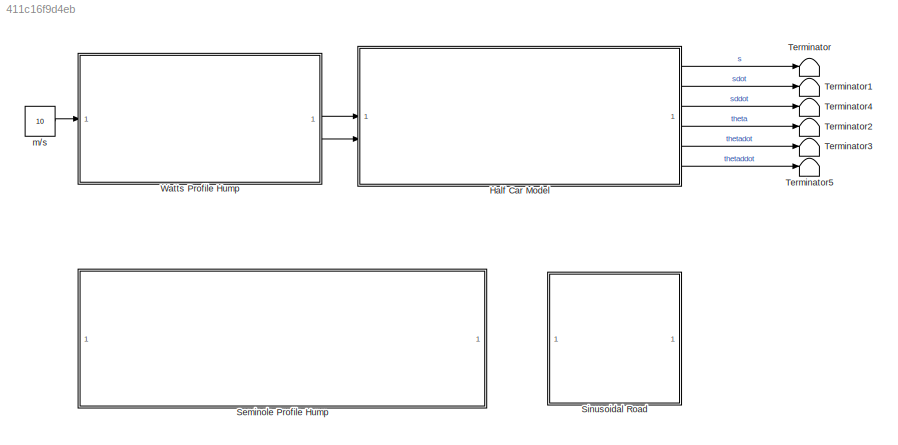
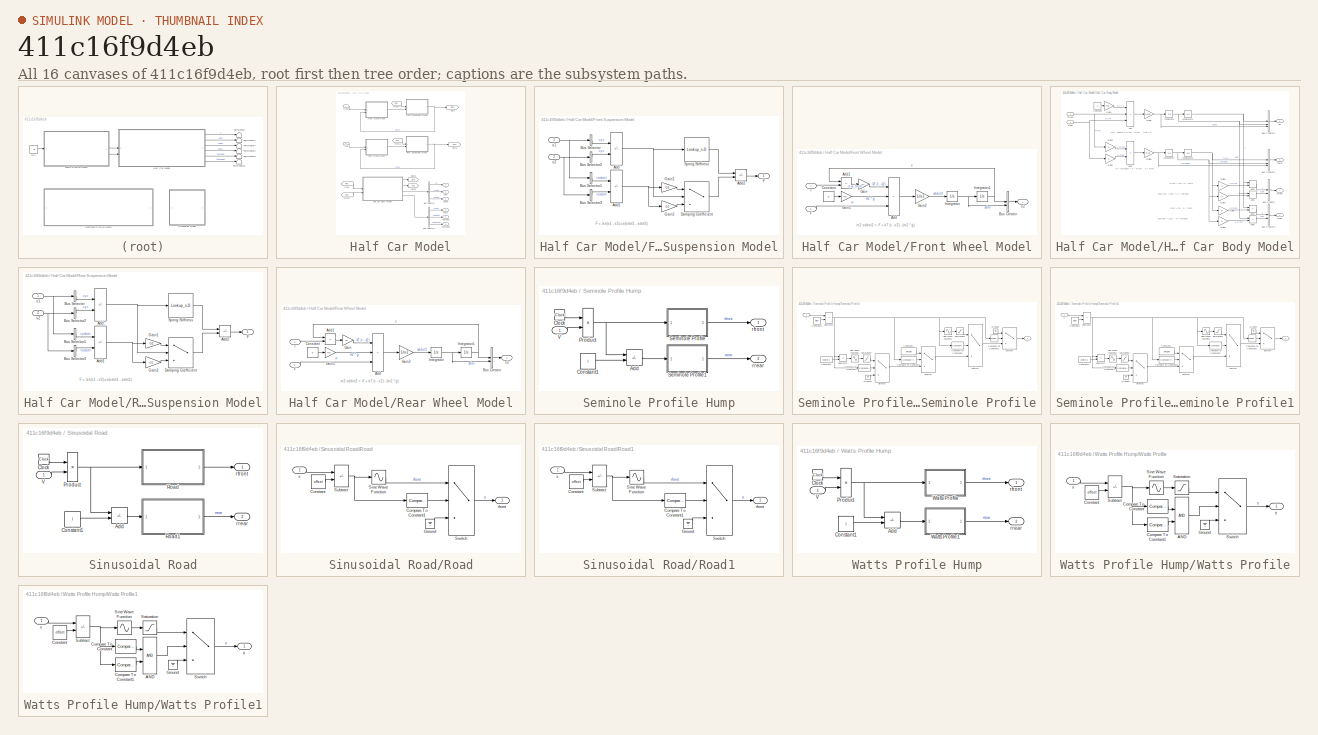
[diagram: thumbnail index - all 16 canvases of the model, root first then tree order]
MODEL slx_411c16f9d4eb
KIND model
CONFIG AbsTol = auto
CONFIG EnableMultiTasking = off
CONFIG FixedStep = auto
CONFIG MaxStep = auto
CONFIG MinStep = auto
CONFIG RelTol = 1e-3
CONFIG SampleTimeConstraint = Unconstrained
CONFIG SolverName = VariableStepAuto
CONFIG StartTime = 0.0
CONFIG StopTime = 30
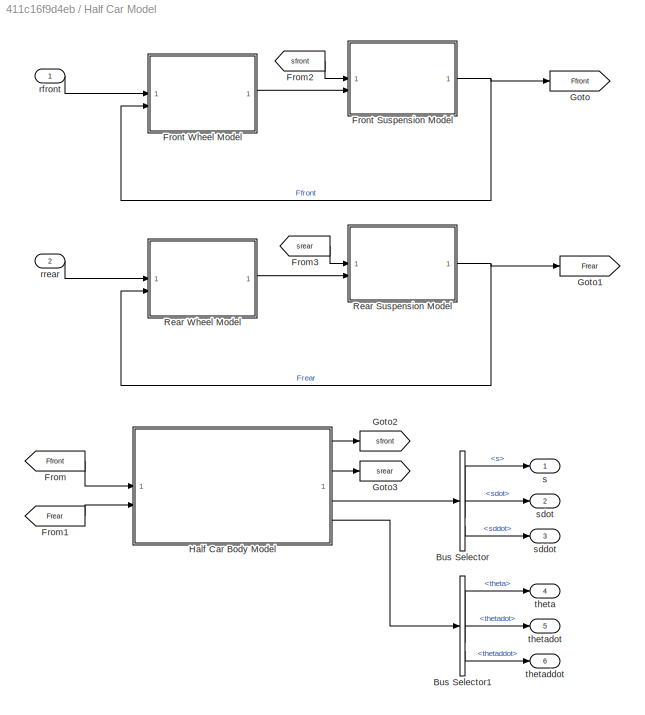
BLOCK [SubSystem] Half Car Model
BLOCK [BusSelector] Half Car Model/Bus Selector
  OutputSignals = s,sdot,sddot
BLOCK [BusSelector] Half Car Model/Bus Selector1
  OutputSignals = theta,thetadot,thetaddot
BLOCK [From] Half Car Model/From
  GotoTag = Ffront
BLOCK [From] Half Car Model/From1
  GotoTag = Frear
BLOCK [From] Half Car Model/From2
  GotoTag = sfront
BLOCK [From] Half Car Model/From3
  GotoTag = srear
BLOCK [SubSystem] Half Car Model/Front Suspension Model
  AttributesFormatString = ks = %<ks>\nk2 = %<k2>\nx0 = %<x0>\nce = %<ce>\ncc = %<cc>
BLOCK [Sum] Half Car Model/Front Suspension Model/Add
  IconShape = rectangular
  Inputs = +-
BLOCK [Sum] Half Car Model/Front Suspension Model/Add1
  IconShape = rectangular
  Inputs = +-
BLOCK [Sum] Half Car Model/Front Suspension Model/Add2
  IconShape = rectangular
  Inputs = --
BLOCK [BusSelector] Half Car Model/Front Suspension Model/Bus Selector
  OutputSignals = s
BLOCK [BusSelector] Half Car Model/Front Suspension Model/Bus Selector1
  OutputSignals = sdot
BLOCK [BusSelector] Half Car Model/Front Suspension Model/Bus Selector2
  OutputSignals = s
BLOCK [BusSelector] Half Car Model/Front Suspension Model/Bus Selector3
  OutputSignals = sdot
BLOCK [Switch] Half Car Model/Front Suspension Model/Damping Coefficient
  Criteria = u2 > Threshold
  InputSameDT = off
  SaturateOnIntegerOverflow = off
BLOCK [Outport] Half Car Model/Front Suspension Model/F
BLOCK [Gain] Half Car Model/Front Suspension Model/Gain1
  Gain = ce
BLOCK [Gain] Half Car Model/Front Suspension Model/Gain2
  Gain = cc
BLOCK [Lookup_n-D] Half Car Model/Front Suspension Model/Spring Stiffness
  BreakpointsForDimension1 = [-2*x0, -x0, x0, 2*x0]
  InputPortMap = u0
  InternalRulePriority = Speed
  NumberOfTableDimensions = 1
  RndMeth = Simplest
  Table = [-(ks+k2)*x0, -ks*x0, ks*x0, (ks+k2)*x0]
BLOCK [Inport] Half Car Model/Front Suspension Model/s1
BLOCK [Inport] Half Car Model/Front Suspension Model/s2
  Port = 2
BLOCK [SubSystem] Half Car Model/Front Wheel Model
  AttributesFormatString = g = %<g>\nkT = %<kT>\nm2 = %<m2>
BLOCK [Sum] Half Car Model/Front Wheel Model/Add
  IconShape = rectangular
  Inputs = +--
BLOCK [Sum] Half Car Model/Front Wheel Model/Add1
  IconShape = rectangular
  Inputs = -+
BLOCK [BusCreator] Half Car Model/Front Wheel Model/Bus Creator
  DisplayOption = bar
  InheritFromInputs = on
  Inputs = 2
BLOCK [Constant] Half Car Model/Front Wheel Model/Constant
  Value = g
BLOCK [Inport] Half Car Model/Front Wheel Model/F
  Port = 2
BLOCK [Gain] Half Car Model/Front Wheel Model/Gain
  Gain = kT
BLOCK [Gain] Half Car Model/Front Wheel Model/Gain1
  Gain = m2
BLOCK [Gain] Half Car Model/Front Wheel Model/Gain2
  Gain = 1/m2
BLOCK [Integrator] Half Car Model/Front Wheel Model/Integrator
BLOCK [Integrator] Half Car Model/Front Wheel Model/Integrator1
BLOCK [Inport] Half Car Model/Front Wheel Model/r
BLOCK [Outport] Half Car Model/Front Wheel Model/s2
BLOCK [Goto] Half Car Model/Goto
  GotoTag = Ffront
BLOCK [Goto] Half Car Model/Goto1
  GotoTag = Frear
BLOCK [Goto] Half Car Model/Goto2
  GotoTag = sfront
BLOCK [Goto] Half Car Model/Goto3
  GotoTag = srear
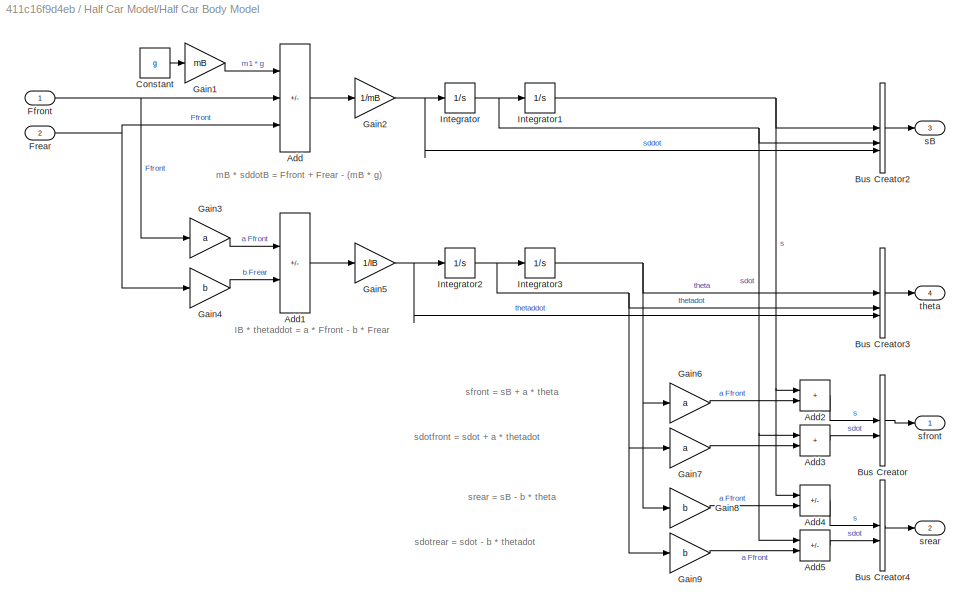
BLOCK [SubSystem] Half Car Model/Half Car Body Model
  AttributesFormatString = mB = %<mB>\nIB = %<IB>\ng = %<g>\na = %<a>\nb = %<b>
BLOCK [Sum] Half Car Model/Half Car Body Model/Add
  IconShape = rectangular
  Inputs = -++
BLOCK [Sum] Half Car Model/Half Car Body Model/Add1
  IconShape = rectangular
  Inputs = +-
BLOCK [Sum] Half Car Model/Half Car Body Model/Add2
  IconShape = rectangular
BLOCK [Sum] Half Car Model/Half Car Body Model/Add3
  IconShape = rectangular
BLOCK [Sum] Half Car Model/Half Car Body Model/Add4
  IconShape = rectangular
  Inputs = +-
BLOCK [Sum] Half Car Model/Half Car Body Model/Add5
  IconShape = rectangular
  Inputs = +-
BLOCK [BusCreator] Half Car Model/Half Car Body Model/Bus Creator
  DisplayOption = bar
  InheritFromInputs = on
  Inputs = 2
BLOCK [BusCreator] Half Car Model/Half Car Body Model/Bus Creator2
  DisplayOption = bar
  InheritFromInputs = on
  Inputs = 3
BLOCK [BusCreator] Half Car Model/Half Car Body Model/Bus Creator3
  DisplayOption = bar
  InheritFromInputs = on
  Inputs = 3
BLOCK [BusCreator] Half Car Model/Half Car Body Model/Bus Creator4
  DisplayOption = bar
  InheritFromInputs = on
  Inputs = 2
BLOCK [Constant] Half Car Model/Half Car Body Model/Constant
  Value = g
BLOCK [Inport] Half Car Model/Half Car Body Model/Ffront
BLOCK [Inport] Half Car Model/Half Car Body Model/Frear
  Port = 2
BLOCK [Gain] Half Car Model/Half Car Body Model/Gain1
  Gain = mB
BLOCK [Gain] Half Car Model/Half Car Body Model/Gain2
  Gain = 1/mB
BLOCK [Gain] Half Car Model/Half Car Body Model/Gain3
  Gain = a
BLOCK [Gain] Half Car Model/Half Car Body Model/Gain4
  Gain = b
BLOCK [Gain] Half Car Model/Half Car Body Model/Gain5
  Gain = 1/IB
BLOCK [Gain] Half Car Model/Half Car Body Model/Gain6
  Gain = a
BLOCK [Gain] Half Car Model/Half Car Body Model/Gain7
  Gain = a
BLOCK [Gain] Half Car Model/Half Car Body Model/Gain8
  Gain = b
BLOCK [Gain] Half Car Model/Half Car Body Model/Gain9
  Gain = b
BLOCK [Integrator] Half Car Model/Half Car Body Model/Integrator
BLOCK [Integrator] Half Car Model/Half Car Body Model/Integrator1
BLOCK [Integrator] Half Car Model/Half Car Body Model/Integrator2
BLOCK [Integrator] Half Car Model/Half Car Body Model/Integrator3
BLOCK [Outport] Half Car Model/Half Car Body Model/sB
  Port = 3
BLOCK [Outport] Half Car Model/Half Car Body Model/sfront
BLOCK [Outport] Half Car Model/Half Car Body Model/srear
  Port = 2
BLOCK [Outport] Half Car Model/Half Car Body Model/theta
  Port = 4
BLOCK [SubSystem] Half Car Model/Rear Suspension Model
  AttributesFormatString = ks = %<ks>\nk2 = %<k2>\nx0 = %<x0>\nce = %<ce>\ncc = %<cc>
BLOCK [Sum] Half Car Model/Rear Suspension Model/Add
  IconShape = rectangular
  Inputs = +-
BLOCK [Sum] Half Car Model/Rear Suspension Model/Add1
  IconShape = rectangular
  Inputs = +-
BLOCK [Sum] Half Car Model/Rear Suspension Model/Add2
  IconShape = rectangular
  Inputs = --
BLOCK [BusSelector] Half Car Model/Rear Suspension Model/Bus Selector
  OutputSignals = s
BLOCK [BusSelector] Half Car Model/Rear Suspension Model/Bus Selector1
  OutputSignals = sdot
BLOCK [BusSelector] Half Car Model/Rear Suspension Model/Bus Selector2
  OutputSignals = s
BLOCK [BusSelector] Half Car Model/Rear Suspension Model/Bus Selector3
  OutputSignals = sdot
BLOCK [Switch] Half Car Model/Rear Suspension Model/Damping Coefficient
  Criteria = u2 > Threshold
  InputSameDT = off
  SaturateOnIntegerOverflow = off
BLOCK [Outport] Half Car Model/Rear Suspension Model/F
BLOCK [Gain] Half Car Model/Rear Suspension Model/Gain1
  Gain = ce
BLOCK [Gain] Half Car Model/Rear Suspension Model/Gain2
  Gain = cc
BLOCK [Lookup_n-D] Half Car Model/Rear Suspension Model/Spring Stiffness
  BreakpointsForDimension1 = [-2*x0, -x0, x0, 2*x0]
  InputPortMap = u0
  InternalRulePriority = Speed
  NumberOfTableDimensions = 1
  RndMeth = Simplest
  Table = [-(ks+k2)*x0, -ks*x0, ks*x0, (ks+k2)*x0]
BLOCK [Inport] Half Car Model/Rear Suspension Model/s1
BLOCK [Inport] Half Car Model/Rear Suspension Model/s2
  Port = 2
BLOCK [SubSystem] Half Car Model/Rear Wheel Model
  AttributesFormatString = g = %<g>\nkT = %<kT>\nm2 = %<m2>
BLOCK [Sum] Half Car Model/Rear Wheel Model/Add
  IconShape = rectangular
  Inputs = +--
BLOCK [Sum] Half Car Model/Rear Wheel Model/Add1
  IconShape = rectangular
  Inputs = -+
BLOCK [BusCreator] Half Car Model/Rear Wheel Model/Bus Creator
  DisplayOption = bar
  InheritFromInputs = on
  Inputs = 2
BLOCK [Constant] Half Car Model/Rear Wheel Model/Constant
  Value = g
BLOCK [Inport] Half Car Model/Rear Wheel Model/F
  Port = 2
BLOCK [Gain] Half Car Model/Rear Wheel Model/Gain
  Gain = kT
BLOCK [Gain] Half Car Model/Rear Wheel Model/Gain1
  Gain = m2
BLOCK [Gain] Half Car Model/Rear Wheel Model/Gain2
  Gain = 1/m2
BLOCK [Integrator] Half Car Model/Rear Wheel Model/Integrator
BLOCK [Integrator] Half Car Model/Rear Wheel Model/Integrator1
BLOCK [Inport] Half Car Model/Rear Wheel Model/r
BLOCK [Outport] Half Car Model/Rear Wheel Model/s2
BLOCK [Inport] Half Car Model/rfront
BLOCK [Inport] Half Car Model/rrear
  Port = 2
BLOCK [Outport] Half Car Model/s
BLOCK [Outport] Half Car Model/sddot
  Port = 3
BLOCK [Outport] Half Car Model/sdot
  Port = 2
BLOCK [Outport] Half Car Model/theta
  Port = 4
BLOCK [Outport] Half Car Model/thetaddot
  Port = 6
BLOCK [Outport] Half Car Model/thetadot
  Port = 5
BLOCK [SubSystem] Seminole Profile Hump
  AttributesFormatString = l = %<l>\nwidth = %<width>\nheight = %<height>\noffset = %<offset>
  Commented = on
BLOCK [Sum] Seminole Profile Hump/Add
  IconShape = rectangular
  Inputs = +-
BLOCK [Clock] Seminole Profile Hump/Clock
BLOCK [Constant] Seminole Profile Hump/Constant1
  Value = l
BLOCK [Product] Seminole Profile Hump/Product
BLOCK [SubSystem] Seminole Profile Hump/Seminole Profile
BLOCK [Reference] Seminole Profile Hump/Seminole Profile/Compare To Constant1  REF=simulink/Logic and Bit
Operations/Compare
To Constant
  SourceBlock = simulink/Logic and Bit\nOperations/Compare\nTo Constant
  SourceType = Compare To Constant
BLOCK [Reference] Seminole Profile Hump/Seminole Profile/Compare To Constant3  REF=simulink/Logic and Bit
Operations/Compare
To Constant
  SourceBlock = simulink/Logic and Bit\nOperations/Compare\nTo Constant
  SourceType = Compare To Constant
BLOCK [Reference] Seminole Profile Hump/Seminole Profile/Compare To Constant4  REF=simulink/Logic and Bit
Operations/Compare
To Constant
  SourceBlock = simulink/Logic and Bit\nOperations/Compare\nTo Constant
  SourceType = Compare To Constant
BLOCK [Reference] Seminole Profile Hump/Seminole Profile/Compare To Constant5  REF=simulink/Logic and Bit
Operations/Compare
To Constant
  SourceBlock = simulink/Logic and Bit\nOperations/Compare\nTo Constant
  SourceType = Compare To Constant
BLOCK [Constant] Seminole Profile Hump/Seminole Profile/Constant1
  Value = height
BLOCK [Constant] Seminole Profile Hump/Seminole Profile/Constant2
  Value = width/3
BLOCK [Constant] Seminole Profile Hump/Seminole Profile/Constant3
  Value = offset
BLOCK [Ground] Seminole Profile Hump/Seminole Profile/Ground
BLOCK [Ground] Seminole Profile Hump/Seminole Profile/Ground1
BLOCK [Saturate] Seminole Profile Hump/Seminole Profile/Saturation1
  LowerLimit = 0
  UpperLimit = height
BLOCK [Saturate] Seminole Profile Hump/Seminole Profile/Saturation2
  LowerLimit = 0
  UpperLimit = height
BLOCK [Sin] Seminole Profile Hump/Seminole Profile/Sine Wave Function1
  Amplitude = height
  Frequency = (2*pi)/(width*4/3)
  SampleTime = 0
  TimeSource = Use external signal
BLOCK [Sin] Seminole Profile Hump/Seminole Profile/Sine Wave Function2
  Amplitude = height
  Frequency = (2*pi)/(width*4/3)
  SampleTime = 0
  TimeSource = Use external signal
BLOCK [Sum] Seminole Profile Hump/Seminole Profile/Subtract1
  IconShape = rectangular
  Inputs = +-
BLOCK [Sum] Seminole Profile Hump/Seminole Profile/Subtract2
  IconShape = rectangular
  Inputs = +-
BLOCK [Switch] Seminole Profile Hump/Seminole Profile/Switch1
  Criteria = u2 > Threshold
  InputSameDT = off
  SaturateOnIntegerOverflow = off
BLOCK [Switch] Seminole Profile Hump/Seminole Profile/Switch2
  Criteria = u2 > Threshold
  InputSameDT = off
  SaturateOnIntegerOverflow = off
BLOCK [Switch] Seminole Profile Hump/Seminole Profile/Switch3
  Criteria = u2 > Threshold
  InputSameDT = off
  SaturateOnIntegerOverflow = off
BLOCK [Switch] Seminole Profile Hump/Seminole Profile/Switch4
  Criteria = u2 > Threshold
  InputSameDT = off
  SaturateOnIntegerOverflow = off
BLOCK [Inport] Seminole Profile Hump/Seminole Profile/x
BLOCK [Outport] Seminole Profile Hump/Seminole Profile/y
BLOCK [SubSystem] Seminole Profile Hump/Seminole Profile1
BLOCK [Reference] Seminole Profile Hump/Seminole Profile1/Compare To Constant1  REF=simulink/Logic and Bit
Operations/Compare
To Constant
  SourceBlock = simulink/Logic and Bit\nOperations/Compare\nTo Constant
  SourceType = Compare To Constant
BLOCK [Reference] Seminole Profile Hump/Seminole Profile1/Compare To Constant3  REF=simulink/Logic and Bit
Operations/Compare
To Constant
  SourceBlock = simulink/Logic and Bit\nOperations/Compare\nTo Constant
  SourceType = Compare To Constant
BLOCK [Reference] Seminole Profile Hump/Seminole Profile1/Compare To Constant4  REF=simulink/Logic and Bit
Operations/Compare
To Constant
  SourceBlock = simulink/Logic and Bit\nOperations/Compare\nTo Constant
  SourceType = Compare To Constant
BLOCK [Reference] Seminole Profile Hump/Seminole Profile1/Compare To Constant5  REF=simulink/Logic and Bit
Operations/Compare
To Constant
  SourceBlock = simulink/Logic and Bit\nOperations/Compare\nTo Constant
  SourceType = Compare To Constant
BLOCK [Constant] Seminole Profile Hump/Seminole Profile1/Constant1
  Value = height
BLOCK [Constant] Seminole Profile Hump/Seminole Profile1/Constant2
  Value = width/3
BLOCK [Constant] Seminole Profile Hump/Seminole Profile1/Constant3
  Value = offset
BLOCK [Ground] Seminole Profile Hump/Seminole Profile1/Ground
BLOCK [Ground] Seminole Profile Hump/Seminole Profile1/Ground1
BLOCK [Saturate] Seminole Profile Hump/Seminole Profile1/Saturation1
  LowerLimit = 0
  UpperLimit = height
BLOCK [Saturate] Seminole Profile Hump/Seminole Profile1/Saturation2
  LowerLimit = 0
  UpperLimit = height
BLOCK [Sin] Seminole Profile Hump/Seminole Profile1/Sine Wave Function1
  Amplitude = height
  Frequency = (2*pi)/(width*4/3)
  SampleTime = 0
  TimeSource = Use external signal
BLOCK [Sin] Seminole Profile Hump/Seminole Profile1/Sine Wave Function2
  Amplitude = height
  Frequency = (2*pi)/(width*4/3)
  SampleTime = 0
  TimeSource = Use external signal
BLOCK [Sum] Seminole Profile Hump/Seminole Profile1/Subtract1
  IconShape = rectangular
  Inputs = +-
BLOCK [Sum] Seminole Profile Hump/Seminole Profile1/Subtract2
  IconShape = rectangular
  Inputs = +-
BLOCK [Switch] Seminole Profile Hump/Seminole Profile1/Switch1
  Criteria = u2 > Threshold
  InputSameDT = off
  SaturateOnIntegerOverflow = off
BLOCK [Switch] Seminole Profile Hump/Seminole Profile1/Switch2
  Criteria = u2 > Threshold
  InputSameDT = off
  SaturateOnIntegerOverflow = off
BLOCK [Switch] Seminole Profile Hump/Seminole Profile1/Switch3
  Criteria = u2 > Threshold
  InputSameDT = off
  SaturateOnIntegerOverflow = off
BLOCK [Switch] Seminole Profile Hump/Seminole Profile1/Switch4
  Criteria = u2 > Threshold
  InputSameDT = off
  SaturateOnIntegerOverflow = off
BLOCK [Inport] Seminole Profile Hump/Seminole Profile1/x
BLOCK [Outport] Seminole Profile Hump/Seminole Profile1/y
BLOCK [Inport] Seminole Profile Hump/V
BLOCK [Outport] Seminole Profile Hump/rfront
BLOCK [Outport] Seminole Profile Hump/rrear
  Port = 2
BLOCK [SubSystem] Sinusoidal Road
  AttributesFormatString = l = %<l>\noffset = %<offset>
  Commented = on
BLOCK [Sum] Sinusoidal Road/Add
  IconShape = rectangular
  Inputs = +-
BLOCK [Clock] Sinusoidal Road/Clock
BLOCK [Constant] Sinusoidal Road/Constant1
  Value = l
BLOCK [Product] Sinusoidal Road/Product
BLOCK [SubSystem] Sinusoidal Road/Road
BLOCK [Reference] Sinusoidal Road/Road/Compare To Constant1  REF=simulink/Logic and Bit
Operations/Compare
To Constant
  SourceBlock = simulink/Logic and Bit\nOperations/Compare\nTo Constant
  SourceType = Compare To Constant
BLOCK [Constant] Sinusoidal Road/Road/Constant
  Value = offset
BLOCK [Ground] Sinusoidal Road/Road/Ground
BLOCK [Sin] Sinusoidal Road/Road/Sine Wave Function
  Amplitude = 0.01
  AttributesFormatString = Amplitude = %<Amplitude>\nFrequency = %<Frequency>
  Frequency = 2*pi
  SampleTime = 0
  TimeSource = Use external signal
BLOCK [Sum] Sinusoidal Road/Road/Subtract
  IconShape = rectangular
  Inputs = +-
BLOCK [Switch] Sinusoidal Road/Road/Switch
  Criteria = u2 > Threshold
  InputSameDT = off
  SaturateOnIntegerOverflow = off
BLOCK [Outport] Sinusoidal Road/Road/rfront
BLOCK [Inport] Sinusoidal Road/Road/x
BLOCK [SubSystem] Sinusoidal Road/Road1
BLOCK [Reference] Sinusoidal Road/Road1/Compare To Constant1  REF=simulink/Logic and Bit
Operations/Compare
To Constant
  SourceBlock = simulink/Logic and Bit\nOperations/Compare\nTo Constant
  SourceType = Compare To Constant
BLOCK [Constant] Sinusoidal Road/Road1/Constant
  Value = offset
BLOCK [Ground] Sinusoidal Road/Road1/Ground
BLOCK [Sin] Sinusoidal Road/Road1/Sine Wave Function
  Amplitude = 0.01
  AttributesFormatString = Amplitude = %<Amplitude>\nFrequency = %<Frequency>
  Frequency = 2*pi
  SampleTime = 0
  TimeSource = Use external signal
BLOCK [Sum] Sinusoidal Road/Road1/Subtract
  IconShape = rectangular
  Inputs = +-
BLOCK [Switch] Sinusoidal Road/Road1/Switch
  Criteria = u2 > Threshold
  InputSameDT = off
  SaturateOnIntegerOverflow = off
BLOCK [Outport] Sinusoidal Road/Road1/rfront
BLOCK [Inport] Sinusoidal Road/Road1/x
BLOCK [Inport] Sinusoidal Road/V
BLOCK [Outport] Sinusoidal Road/rfront
BLOCK [Outport] Sinusoidal Road/rrear
  Port = 2
BLOCK [Terminator] Terminator
BLOCK [Terminator] Terminator1
BLOCK [Terminator] Terminator2
BLOCK [Terminator] Terminator3
BLOCK [Terminator] Terminator4
BLOCK [Terminator] Terminator5
BLOCK [SubSystem] Watts Profile Hump
  AttributesFormatString = l = %<l>\nwidth = %<width>\nheight = %<height>\noffset = %<offset>
BLOCK [Sum] Watts Profile Hump/Add
  IconShape = rectangular
  Inputs = +-
BLOCK [Clock] Watts Profile Hump/Clock
BLOCK [Constant] Watts Profile Hump/Constant1
  Value = l
BLOCK [Product] Watts Profile Hump/Product
BLOCK [Inport] Watts Profile Hump/V
BLOCK [SubSystem] Watts Profile Hump/Watts Profile
BLOCK [Logic] Watts Profile Hump/Watts Profile/AND
  AllPortsSameDT = off
  OutDataTypeStr = boolean
BLOCK [Reference] Watts Profile Hump/Watts Profile/Compare To Constant  REF=simulink/Logic and Bit
Operations/Compare
To Constant
  SourceBlock = simulink/Logic and Bit\nOperations/Compare\nTo Constant
  SourceType = Compare To Constant
BLOCK [Reference] Watts Profile Hump/Watts Profile/Compare To Constant1  REF=simulink/Logic and Bit
Operations/Compare
To Constant
  SourceBlock = simulink/Logic and Bit\nOperations/Compare\nTo Constant
  SourceType = Compare To Constant
BLOCK [Constant] Watts Profile Hump/Watts Profile/Constant
  Value = offset
BLOCK [Ground] Watts Profile Hump/Watts Profile/Ground
BLOCK [Saturate] Watts Profile Hump/Watts Profile/Saturation
  LowerLimit = 0
  UpperLimit = height
BLOCK [Sin] Watts Profile Hump/Watts Profile/Sine Wave Function
  Amplitude = height
  Frequency = (2*pi)/(width*2)
  SampleTime = 0
  TimeSource = Use external signal
BLOCK [Sum] Watts Profile Hump/Watts Profile/Subtract
  IconShape = rectangular
  Inputs = +-
BLOCK [Switch] Watts Profile Hump/Watts Profile/Switch
  Criteria = u2 > Threshold
  InputSameDT = off
  SaturateOnIntegerOverflow = off
BLOCK [Inport] Watts Profile Hump/Watts Profile/x
BLOCK [Outport] Watts Profile Hump/Watts Profile/y
BLOCK [SubSystem] Watts Profile Hump/Watts Profile1
BLOCK [Logic] Watts Profile Hump/Watts Profile1/AND
  AllPortsSameDT = off
  OutDataTypeStr = boolean
BLOCK [Reference] Watts Profile Hump/Watts Profile1/Compare To Constant  REF=simulink/Logic and Bit
Operations/Compare
To Constant
  SourceBlock = simulink/Logic and Bit\nOperations/Compare\nTo Constant
  SourceType = Compare To Constant
BLOCK [Reference] Watts Profile Hump/Watts Profile1/Compare To Constant1  REF=simulink/Logic and Bit
Operations/Compare
To Constant
  SourceBlock = simulink/Logic and Bit\nOperations/Compare\nTo Constant
  SourceType = Compare To Constant
BLOCK [Constant] Watts Profile Hump/Watts Profile1/Constant
  Value = offset
BLOCK [Ground] Watts Profile Hump/Watts Profile1/Ground
BLOCK [Saturate] Watts Profile Hump/Watts Profile1/Saturation
  LowerLimit = 0
  UpperLimit = height
BLOCK [Sin] Watts Profile Hump/Watts Profile1/Sine Wave Function
  Amplitude = height
  Frequency = (2*pi)/(width*2)
  SampleTime = 0
  TimeSource = Use external signal
BLOCK [Sum] Watts Profile Hump/Watts Profile1/Subtract
  IconShape = rectangular
  Inputs = +-
BLOCK [Switch] Watts Profile Hump/Watts Profile1/Switch
  Criteria = u2 > Threshold
  InputSameDT = off
  SaturateOnIntegerOverflow = off
BLOCK [Inport] Watts Profile Hump/Watts Profile1/x
BLOCK [Outport] Watts Profile Hump/Watts Profile1/y
BLOCK [Outport] Watts Profile Hump/rfront
BLOCK [Outport] Watts Profile Hump/rrear
  Port = 2
BLOCK [Constant] m//s
  Value = 10
ANNOTATION Half Car Model/Front Suspension Model: F = -ks(s1 - s2)-cs(sdot1 - sdot2)
ANNOTATION Half Car Model/Front Wheel Model: m2 sddot2 = -F + kT (r - s2) - (m2 * g)
ANNOTATION Half Car Model/Half Car Body Model: IB * thetaddot = a * Ffront - b * Frear
ANNOTATION Half Car Model/Half Car Body Model: mB * sddotB = Ffront + Frear - (mB * g)
ANNOTATION Half Car Model/Half Car Body Model: sdotfront = sdot + a * thetadot
ANNOTATION Half Car Model/Half Car Body Model: sdotrear = sdot - b * thetadot
ANNOTATION Half Car Model/Half Car Body Model: sfront = sB + a * theta
ANNOTATION Half Car Model/Half Car Body Model: srear = sB - b * theta
ANNOTATION Half Car Model/Rear Suspension Model: F = -ks(s1 - s2)-cs(sdot1 - sdot2)
ANNOTATION Half Car Model/Rear Wheel Model: m2 sddot2 = -F + kT (r - s2) - (m2 * g)
LINE Half Car Model/Bus Selector1:1 -> Half Car Model/theta:1
LINE Half Car Model/Bus Selector1:2 -> Half Car Model/thetadot:1
LINE Half Car Model/Bus Selector1:3 -> Half Car Model/thetaddot:1
LINE Half Car Model/Bus Selector:1 -> Half Car Model/s:1
LINE Half Car Model/Bus Selector:2 -> Half Car Model/sdot:1
LINE Half Car Model/Bus Selector:3 -> Half Car Model/sddot:1
LINE Half Car Model/From1:1 -> Half Car Model/Half Car Body Model:2
LINE Half Car Model/From2:1 -> Half Car Model/Front Suspension Model:1
LINE Half Car Model/From3:1 -> Half Car Model/Rear Suspension Model:1
LINE Half Car Model/From:1 -> Half Car Model/Half Car Body Model:1
NET Half Car Model/Front Suspension Model/Add1:1 -> Half Car Model/Front Suspension Model/Gain1:1, Half Car Model/Front Suspension Model/Gain2:1
LINE Half Car Model/Front Suspension Model/Add2:1 -> Half Car Model/Front Suspension Model/F:1
NET Half Car Model/Front Suspension Model/Add:1 -> Half Car Model/Front Suspension Model/Damping Coefficient:2, Half Car Model/Front Suspension Model/Spring Stiffness:1
LINE Half Car Model/Front Suspension Model/Bus Selector1:1 -> Half Car Model/Front Suspension Model/Add1:1
LINE Half Car Model/Front Suspension Model/Bus Selector2:1 -> Half Car Model/Front Suspension Model/Add:2
LINE Half Car Model/Front Suspension Model/Bus Selector3:1 -> Half Car Model/Front Suspension Model/Add1:2
LINE Half Car Model/Front Suspension Model/Bus Selector:1 -> Half Car Model/Front Suspension Model/Add:1
LINE Half Car Model/Front Suspension Model/Damping Coefficient:1 -> Half Car Model/Front Suspension Model/Add2:2
LINE Half Car Model/Front Suspension Model/Gain1:1 -> Half Car Model/Front Suspension Model/Damping Coefficient:1
LINE Half Car Model/Front Suspension Model/Gain2:1 -> Half Car Model/Front Suspension Model/Damping Coefficient:3
LINE Half Car Model/Front Suspension Model/Spring Stiffness:1 -> Half Car Model/Front Suspension Model/Add2:1
NET Half Car Model/Front Suspension Model/s1:1 -> Half Car Model/Front Suspension Model/Bus Selector1:1, Half Car Model/Front Suspension Model/Bus Selector:1
NET Half Car Model/Front Suspension Model/s2:1 -> Half Car Model/Front Suspension Model/Bus Selector2:1, Half Car Model/Front Suspension Model/Bus Selector3:1
NET Half Car Model/Front Suspension Model:1 -> Half Car Model/Front Wheel Model:2, Half Car Model/Goto:1
LINE Half Car Model/Front Wheel Model/Add1:1 -> Half Car Model/Front Wheel Model/Gain:1
LINE Half Car Model/Front Wheel Model/Add:1 -> Half Car Model/Front Wheel Model/Gain2:1
LINE Half Car Model/Front Wheel Model/Bus Creator:1 -> Half Car Model/Front Wheel Model/s2:1
LINE Half Car Model/Front Wheel Model/Constant:1 -> Half Car Model/Front Wheel Model/Gain1:1
LINE Half Car Model/Front Wheel Model/F:1 -> Half Car Model/Front Wheel Model/Add:3
LINE Half Car Model/Front Wheel Model/Gain1:1 -> Half Car Model/Front Wheel Model/Add:2
LINE Half Car Model/Front Wheel Model/Gain2:1 -> Half Car Model/Front Wheel Model/Integrator:1
LINE Half Car Model/Front Wheel Model/Gain:1 -> Half Car Model/Front Wheel Model/Add:1
NET Half Car Model/Front Wheel Model/Integrator1:1 -> Half Car Model/Front Wheel Model/Add1:1, Half Car Model/Front Wheel Model/Bus Creator:1
NET Half Car Model/Front Wheel Model/Integrator:1 -> Half Car Model/Front Wheel Model/Bus Creator:2, Half Car Model/Front Wheel Model/Integrator1:1
LINE Half Car Model/Front Wheel Model/r:1 -> Half Car Model/Front Wheel Model/Add1:2
LINE Half Car Model/Front Wheel Model:1 -> Half Car Model/Front Suspension Model:2
LINE Half Car Model/Half Car Body Model/Add1:1 -> Half Car Model/Half Car Body Model/Gain5:1
LINE Half Car Model/Half Car Body Model/Add2:1 -> Half Car Model/Half Car Body Model/Bus Creator:1
LINE Half Car Model/Half Car Body Model/Add3:1 -> Half Car Model/Half Car Body Model/Bus Creator:2
LINE Half Car Model/Half Car Body Model/Add4:1 -> Half Car Model/Half Car Body Model/Bus Creator4:1
LINE Half Car Model/Half Car Body Model/Add5:1 -> Half Car Model/Half Car Body Model/Bus Creator4:2
LINE Half Car Model/Half Car Body Model/Add:1 -> Half Car Model/Half Car Body Model/Gain2:1
LINE Half Car Model/Half Car Body Model/Bus Creator2:1 -> Half Car Model/Half Car Body Model/sB:1
LINE Half Car Model/Half Car Body Model/Bus Creator3:1 -> Half Car Model/Half Car Body Model/theta:1
LINE Half Car Model/Half Car Body Model/Bus Creator4:1 -> Half Car Model/Half Car Body Model/srear:1
LINE Half Car Model/Half Car Body Model/Bus Creator:1 -> Half Car Model/Half Car Body Model/sfront:1
LINE Half Car Model/Half Car Body Model/Constant:1 -> Half Car Model/Half Car Body Model/Gain1:1
NET Half Car Model/Half Car Body Model/Ffront:1 -> Half Car Model/Half Car Body Model/Add:2, Half Car Model/Half Car Body Model/Gain3:1
NET Half Car Model/Half Car Body Model/Frear:1 -> Half Car Model/Half Car Body Model/Add:3, Half Car Model/Half Car Body Model/Gain4:1
LINE Half Car Model/Half Car Body Model/Gain1:1 -> Half Car Model/Half Car Body Model/Add:1
NET Half Car Model/Half Car Body Model/Gain2:1 -> Half Car Model/Half Car Body Model/Bus Creator2:3, Half Car Model/Half Car Body Model/Integrator:1
LINE Half Car Model/Half Car Body Model/Gain3:1 -> Half Car Model/Half Car Body Model/Add1:1
LINE Half Car Model/Half Car Body Model/Gain4:1 -> Half Car Model/Half Car Body Model/Add1:2
NET Half Car Model/Half Car Body Model/Gain5:1 -> Half Car Model/Half Car Body Model/Bus Creator3:3, Half Car Model/Half Car Body Model/Integrator2:1
LINE Half Car Model/Half Car Body Model/Gain6:1 -> Half Car Model/Half Car Body Model/Add2:2
LINE Half Car Model/Half Car Body Model/Gain7:1 -> Half Car Model/Half Car Body Model/Add3:2
LINE Half Car Model/Half Car Body Model/Gain8:1 -> Half Car Model/Half Car Body Model/Add4:2
LINE Half Car Model/Half Car Body Model/Gain9:1 -> Half Car Model/Half Car Body Model/Add5:2
NET Half Car Model/Half Car Body Model/Integrator1:1 -> Half Car Model/Half Car Body Model/Add2:1, Half Car Model/Half Car Body Model/Add4:1, Half Car Model/Half Car Body Model/Bus Creator2:1
NET Half Car Model/Half Car Body Model/Integrator2:1 -> Half Car Model/Half Car Body Model/Bus Creator3:2, Half Car Model/Half Car Body Model/Gain7:1, Half Car Model/Half Car Body Model/Gain9:1, Half Car Model/Half Car Body Model/Integrator3:1
NET Half Car Model/Half Car Body Model/Integrator3:1 -> Half Car Model/Half Car Body Model/Bus Creator3:1, Half Car Model/Half Car Body Model/Gain6:1, Half Car Model/Half Car Body Model/Gain8:1
NET Half Car Model/Half Car Body Model/Integrator:1 -> Half Car Model/Half Car Body Model/Add3:1, Half Car Model/Half Car Body Model/Add5:1, Half Car Model/Half Car Body Model/Bus Creator2:2, Half Car Model/Half Car Body Model/Integrator1:1
LINE Half Car Model/Half Car Body Model:1 -> Half Car Model/Goto2:1
LINE Half Car Model/Half Car Body Model:2 -> Half Car Model/Goto3:1
LINE Half Car Model/Half Car Body Model:3 -> Half Car Model/Bus Selector:1
LINE Half Car Model/Half Car Body Model:4 -> Half Car Model/Bus Selector1:1
NET Half Car Model/Rear Suspension Model/Add1:1 -> Half Car Model/Rear Suspension Model/Gain1:1, Half Car Model/Rear Suspension Model/Gain2:1
LINE Half Car Model/Rear Suspension Model/Add2:1 -> Half Car Model/Rear Suspension Model/F:1
NET Half Car Model/Rear Suspension Model/Add:1 -> Half Car Model/Rear Suspension Model/Damping Coefficient:2, Half Car Model/Rear Suspension Model/Spring Stiffness:1
LINE Half Car Model/Rear Suspension Model/Bus Selector1:1 -> Half Car Model/Rear Suspension Model/Add1:1
LINE Half Car Model/Rear Suspension Model/Bus Selector2:1 -> Half Car Model/Rear Suspension Model/Add:2
LINE Half Car Model/Rear Suspension Model/Bus Selector3:1 -> Half Car Model/Rear Suspension Model/Add1:2
LINE Half Car Model/Rear Suspension Model/Bus Selector:1 -> Half Car Model/Rear Suspension Model/Add:1
LINE Half Car Model/Rear Suspension Model/Damping Coefficient:1 -> Half Car Model/Rear Suspension Model/Add2:2
LINE Half Car Model/Rear Suspension Model/Gain1:1 -> Half Car Model/Rear Suspension Model/Damping Coefficient:1
LINE Half Car Model/Rear Suspension Model/Gain2:1 -> Half Car Model/Rear Suspension Model/Damping Coefficient:3
LINE Half Car Model/Rear Suspension Model/Spring Stiffness:1 -> Half Car Model/Rear Suspension Model/Add2:1
NET Half Car Model/Rear Suspension Model/s1:1 -> Half Car Model/Rear Suspension Model/Bus Selector1:1, Half Car Model/Rear Suspension Model/Bus Selector:1
NET Half Car Model/Rear Suspension Model/s2:1 -> Half Car Model/Rear Suspension Model/Bus Selector2:1, Half Car Model/Rear Suspension Model/Bus Selector3:1
NET Half Car Model/Rear Suspension Model:1 -> Half Car Model/Goto1:1, Half Car Model/Rear Wheel Model:2
LINE Half Car Model/Rear Wheel Model/Add1:1 -> Half Car Model/Rear Wheel Model/Gain:1
LINE Half Car Model/Rear Wheel Model/Add:1 -> Half Car Model/Rear Wheel Model/Gain2:1
LINE Half Car Model/Rear Wheel Model/Bus Creator:1 -> Half Car Model/Rear Wheel Model/s2:1
LINE Half Car Model/Rear Wheel Model/Constant:1 -> Half Car Model/Rear Wheel Model/Gain1:1
LINE Half Car Model/Rear Wheel Model/F:1 -> Half Car Model/Rear Wheel Model/Add:3
LINE Half Car Model/Rear Wheel Model/Gain1:1 -> Half Car Model/Rear Wheel Model/Add:2
LINE Half Car Model/Rear Wheel Model/Gain2:1 -> Half Car Model/Rear Wheel Model/Integrator:1
LINE Half Car Model/Rear Wheel Model/Gain:1 -> Half Car Model/Rear Wheel Model/Add:1
NET Half Car Model/Rear Wheel Model/Integrator1:1 -> Half Car Model/Rear Wheel Model/Add1:1, Half Car Model/Rear Wheel Model/Bus Creator:1
NET Half Car Model/Rear Wheel Model/Integrator:1 -> Half Car Model/Rear Wheel Model/Bus Creator:2, Half Car Model/Rear Wheel Model/Integrator1:1
LINE Half Car Model/Rear Wheel Model/r:1 -> Half Car Model/Rear Wheel Model/Add1:2
LINE Half Car Model/Rear Wheel Model:1 -> Half Car Model/Rear Suspension Model:2
LINE Half Car Model/rfront:1 -> Half Car Model/Front Wheel Model:1
LINE Half Car Model/rrear:1 -> Half Car Model/Rear Wheel Model:1
LINE Half Car Model:1 -> Terminator:1
LINE Half Car Model:2 -> Terminator1:1
LINE Half Car Model:3 -> Terminator4:1
LINE Half Car Model:4 -> Terminator2:1
LINE Half Car Model:5 -> Terminator3:1
LINE Half Car Model:6 -> Terminator5:1
LINE Seminole Profile Hump/Add:1 -> Seminole Profile Hump/Seminole Profile1:1
LINE Seminole Profile Hump/Clock:1 -> Seminole Profile Hump/Product:1
LINE Seminole Profile Hump/Constant1:1 -> Seminole Profile Hump/Add:2
NET Seminole Profile Hump/Product:1 -> Seminole Profile Hump/Add:1, Seminole Profile Hump/Seminole Profile:1
LINE Seminole Profile Hump/Seminole Profile/Compare To Constant1:1 -> Seminole Profile Hump/Seminole Profile/Switch4:2
LINE Seminole Profile Hump/Seminole Profile/Compare To Constant3:1 -> Seminole Profile Hump/Seminole Profile/Switch2:2
LINE Seminole Profile Hump/Seminole Profile/Compare To Constant4:1 -> Seminole Profile Hump/Seminole Profile/Switch3:2
LINE Seminole Profile Hump/Seminole Profile/Compare To Constant5:1 -> Seminole Profile Hump/Seminole Profile/Switch1:2
LINE Seminole Profile Hump/Seminole Profile/Constant1:1 -> Seminole Profile Hump/Seminole Profile/Switch2:1
LINE Seminole Profile Hump/Seminole Profile/Constant2:1 -> Seminole Profile Hump/Seminole Profile/Subtract1:2
LINE Seminole Profile Hump/Seminole Profile/Constant3:1 -> Seminole Profile Hump/Seminole Profile/Subtract2:2
LINE Seminole Profile Hump/Seminole Profile/Ground1:1 -> Seminole Profile Hump/Seminole Profile/Switch3:3
LINE Seminole Profile Hump/Seminole Profile/Ground:1 -> Seminole Profile Hump/Seminole Profile/Switch4:1
LINE Seminole Profile Hump/Seminole Profile/Saturation1:1 -> Seminole Profile Hump/Seminole Profile/Switch1:1
LINE Seminole Profile Hump/Seminole Profile/Saturation2:1 -> Seminole Profile Hump/Seminole Profile/Switch3:1
LINE Seminole Profile Hump/Seminole Profile/Sine Wave Function1:1 -> Seminole Profile Hump/Seminole Profile/Saturation1:1
LINE Seminole Profile Hump/Seminole Profile/Sine Wave Function2:1 -> Seminole Profile Hump/Seminole Profile/Saturation2:1
LINE Seminole Profile Hump/Seminole Profile/Subtract1:1 -> Seminole Profile Hump/Seminole Profile/Sine Wave Function2:1
NET Seminole Profile Hump/Seminole Profile/Subtract2:1 -> Seminole Profile Hump/Seminole Profile/Compare To Constant1:1, Seminole Profile Hump/Seminole Profile/Compare To Constant3:1, Seminole Profile Hump/Seminole Profile/Compare To Constant4:1, Seminole Profile Hump/Seminole Profile/Compare To Constant5:1, Seminole Profile Hump/Seminole Profile/Sine Wave Function1:1, Seminole Profile Hump/Seminole Profile/Subtract1:1
LINE Seminole Profile Hump/Seminole Profile/Switch1:1 -> Seminole Profile Hump/Seminole Profile/Switch4:3
LINE Seminole Profile Hump/Seminole Profile/Switch2:1 -> Seminole Profile Hump/Seminole Profile/Switch1:3
LINE Seminole Profile Hump/Seminole Profile/Switch3:1 -> Seminole Profile Hump/Seminole Profile/Switch2:3
LINE Seminole Profile Hump/Seminole Profile/Switch4:1 -> Seminole Profile Hump/Seminole Profile/y:1
LINE Seminole Profile Hump/Seminole Profile/x:1 -> Seminole Profile Hump/Seminole Profile/Subtract2:1
LINE Seminole Profile Hump/Seminole Profile1/Compare To Constant1:1 -> Seminole Profile Hump/Seminole Profile1/Switch4:2
LINE Seminole Profile Hump/Seminole Profile1/Compare To Constant3:1 -> Seminole Profile Hump/Seminole Profile1/Switch2:2
LINE Seminole Profile Hump/Seminole Profile1/Compare To Constant4:1 -> Seminole Profile Hump/Seminole Profile1/Switch3:2
LINE Seminole Profile Hump/Seminole Profile1/Compare To Constant5:1 -> Seminole Profile Hump/Seminole Profile1/Switch1:2
LINE Seminole Profile Hump/Seminole Profile1/Constant1:1 -> Seminole Profile Hump/Seminole Profile1/Switch2:1
LINE Seminole Profile Hump/Seminole Profile1/Constant2:1 -> Seminole Profile Hump/Seminole Profile1/Subtract1:2
LINE Seminole Profile Hump/Seminole Profile1/Constant3:1 -> Seminole Profile Hump/Seminole Profile1/Subtract2:2
LINE Seminole Profile Hump/Seminole Profile1/Ground1:1 -> Seminole Profile Hump/Seminole Profile1/Switch3:3
LINE Seminole Profile Hump/Seminole Profile1/Ground:1 -> Seminole Profile Hump/Seminole Profile1/Switch4:1
LINE Seminole Profile Hump/Seminole Profile1/Saturation1:1 -> Seminole Profile Hump/Seminole Profile1/Switch1:1
LINE Seminole Profile Hump/Seminole Profile1/Saturation2:1 -> Seminole Profile Hump/Seminole Profile1/Switch3:1
LINE Seminole Profile Hump/Seminole Profile1/Sine Wave Function1:1 -> Seminole Profile Hump/Seminole Profile1/Saturation1:1
LINE Seminole Profile Hump/Seminole Profile1/Sine Wave Function2:1 -> Seminole Profile Hump/Seminole Profile1/Saturation2:1
LINE Seminole Profile Hump/Seminole Profile1/Subtract1:1 -> Seminole Profile Hump/Seminole Profile1/Sine Wave Function2:1
NET Seminole Profile Hump/Seminole Profile1/Subtract2:1 -> Seminole Profile Hump/Seminole Profile1/Compare To Constant1:1, Seminole Profile Hump/Seminole Profile1/Compare To Constant3:1, Seminole Profile Hump/Seminole Profile1/Compare To Constant4:1, Seminole Profile Hump/Seminole Profile1/Compare To Constant5:1, Seminole Profile Hump/Seminole Profile1/Sine Wave Function1:1, Seminole Profile Hump/Seminole Profile1/Subtract1:1
LINE Seminole Profile Hump/Seminole Profile1/Switch1:1 -> Seminole Profile Hump/Seminole Profile1/Switch4:3
LINE Seminole Profile Hump/Seminole Profile1/Switch2:1 -> Seminole Profile Hump/Seminole Profile1/Switch1:3
LINE Seminole Profile Hump/Seminole Profile1/Switch3:1 -> Seminole Profile Hump/Seminole Profile1/Switch2:3
LINE Seminole Profile Hump/Seminole Profile1/Switch4:1 -> Seminole Profile Hump/Seminole Profile1/y:1
LINE Seminole Profile Hump/Seminole Profile1/x:1 -> Seminole Profile Hump/Seminole Profile1/Subtract2:1
LINE Seminole Profile Hump/Seminole Profile1:1 -> Seminole Profile Hump/rrear:1
LINE Seminole Profile Hump/Seminole Profile:1 -> Seminole Profile Hump/rfront:1
LINE Seminole Profile Hump/V:1 -> Seminole Profile Hump/Product:2
LINE Sinusoidal Road/Add:1 -> Sinusoidal Road/Road1:1
LINE Sinusoidal Road/Clock:1 -> Sinusoidal Road/Product:1
LINE Sinusoidal Road/Constant1:1 -> Sinusoidal Road/Add:2
NET Sinusoidal Road/Product:1 -> Sinusoidal Road/Add:1, Sinusoidal Road/Road:1
LINE Sinusoidal Road/Road/Compare To Constant1:1 -> Sinusoidal Road/Road/Switch:2
LINE Sinusoidal Road/Road/Constant:1 -> Sinusoidal Road/Road/Subtract:2
LINE Sinusoidal Road/Road/Ground:1 -> Sinusoidal Road/Road/Switch:3
LINE Sinusoidal Road/Road/Sine Wave Function:1 -> Sinusoidal Road/Road/Switch:1
NET Sinusoidal Road/Road/Subtract:1 -> Sinusoidal Road/Road/Compare To Constant1:1, Sinusoidal Road/Road/Sine Wave Function:1
LINE Sinusoidal Road/Road/Switch:1 -> Sinusoidal Road/Road/rfront:1
LINE Sinusoidal Road/Road/x:1 -> Sinusoidal Road/Road/Subtract:1
LINE Sinusoidal Road/Road1/Compare To Constant1:1 -> Sinusoidal Road/Road1/Switch:2
LINE Sinusoidal Road/Road1/Constant:1 -> Sinusoidal Road/Road1/Subtract:2
LINE Sinusoidal Road/Road1/Ground:1 -> Sinusoidal Road/Road1/Switch:3
LINE Sinusoidal Road/Road1/Sine Wave Function:1 -> Sinusoidal Road/Road1/Switch:1
NET Sinusoidal Road/Road1/Subtract:1 -> Sinusoidal Road/Road1/Compare To Constant1:1, Sinusoidal Road/Road1/Sine Wave Function:1
LINE Sinusoidal Road/Road1/Switch:1 -> Sinusoidal Road/Road1/rfront:1
LINE Sinusoidal Road/Road1/x:1 -> Sinusoidal Road/Road1/Subtract:1
LINE Sinusoidal Road/Road1:1 -> Sinusoidal Road/rrear:1
LINE Sinusoidal Road/Road:1 -> Sinusoidal Road/rfront:1
LINE Sinusoidal Road/V:1 -> Sinusoidal Road/Product:2
LINE Watts Profile Hump/Add:1 -> Watts Profile Hump/Watts Profile1:1
LINE Watts Profile Hump/Clock:1 -> Watts Profile Hump/Product:1
LINE Watts Profile Hump/Constant1:1 -> Watts Profile Hump/Add:2
NET Watts Profile Hump/Product:1 -> Watts Profile Hump/Add:1, Watts Profile Hump/Watts Profile:1
LINE Watts Profile Hump/V:1 -> Watts Profile Hump/Product:2
LINE Watts Profile Hump/Watts Profile/AND:1 -> Watts Profile Hump/Watts Profile/Switch:2
LINE Watts Profile Hump/Watts Profile/Compare To Constant1:1 -> Watts Profile Hump/Watts Profile/AND:2
LINE Watts Profile Hump/Watts Profile/Compare To Constant:1 -> Watts Profile Hump/Watts Profile/AND:1
LINE Watts Profile Hump/Watts Profile/Constant:1 -> Watts Profile Hump/Watts Profile/Subtract:2
LINE Watts Profile Hump/Watts Profile/Ground:1 -> Watts Profile Hump/Watts Profile/Switch:3
LINE Watts Profile Hump/Watts Profile/Saturation:1 -> Watts Profile Hump/Watts Profile/Switch:1
LINE Watts Profile Hump/Watts Profile/Sine Wave Function:1 -> Watts Profile Hump/Watts Profile/Saturation:1
NET Watts Profile Hump/Watts Profile/Subtract:1 -> Watts Profile Hump/Watts Profile/Compare To Constant1:1, Watts Profile Hump/Watts Profile/Compare To Constant:1, Watts Profile Hump/Watts Profile/Sine Wave Function:1
LINE Watts Profile Hump/Watts Profile/Switch:1 -> Watts Profile Hump/Watts Profile/y:1
LINE Watts Profile Hump/Watts Profile/x:1 -> Watts Profile Hump/Watts Profile/Subtract:1
LINE Watts Profile Hump/Watts Profile1/AND:1 -> Watts Profile Hump/Watts Profile1/Switch:2
LINE Watts Profile Hump/Watts Profile1/Compare To Constant1:1 -> Watts Profile Hump/Watts Profile1/AND:2
LINE Watts Profile Hump/Watts Profile1/Compare To Constant:1 -> Watts Profile Hump/Watts Profile1/AND:1
LINE Watts Profile Hump/Watts Profile1/Constant:1 -> Watts Profile Hump/Watts Profile1/Subtract:2
LINE Watts Profile Hump/Watts Profile1/Ground:1 -> Watts Profile Hump/Watts Profile1/Switch:3
LINE Watts Profile Hump/Watts Profile1/Saturation:1 -> Watts Profile Hump/Watts Profile1/Switch:1
LINE Watts Profile Hump/Watts Profile1/Sine Wave Function:1 -> Watts Profile Hump/Watts Profile1/Saturation:1
NET Watts Profile Hump/Watts Profile1/Subtract:1 -> Watts Profile Hump/Watts Profile1/Compare To Constant1:1, Watts Profile Hump/Watts Profile1/Compare To Constant:1, Watts Profile Hump/Watts Profile1/Sine Wave Function:1
LINE Watts Profile Hump/Watts Profile1/Switch:1 -> Watts Profile Hump/Watts Profile1/y:1
LINE Watts Profile Hump/Watts Profile1/x:1 -> Watts Profile Hump/Watts Profile1/Subtract:1
LINE Watts Profile Hump/Watts Profile1:1 -> Watts Profile Hump/rrear:1
LINE Watts Profile Hump/Watts Profile:1 -> Watts Profile Hump/rfront:1
LINE Watts Profile Hump:1 -> Half Car Model:1
LINE Watts Profile Hump:2 -> Half Car Model:2
LINE m//s:1 -> Watts Profile Hump:1
note: NET lines group one-source signal fan-out (src -> all destinations, sorted); 1:1 wires keep LINE
